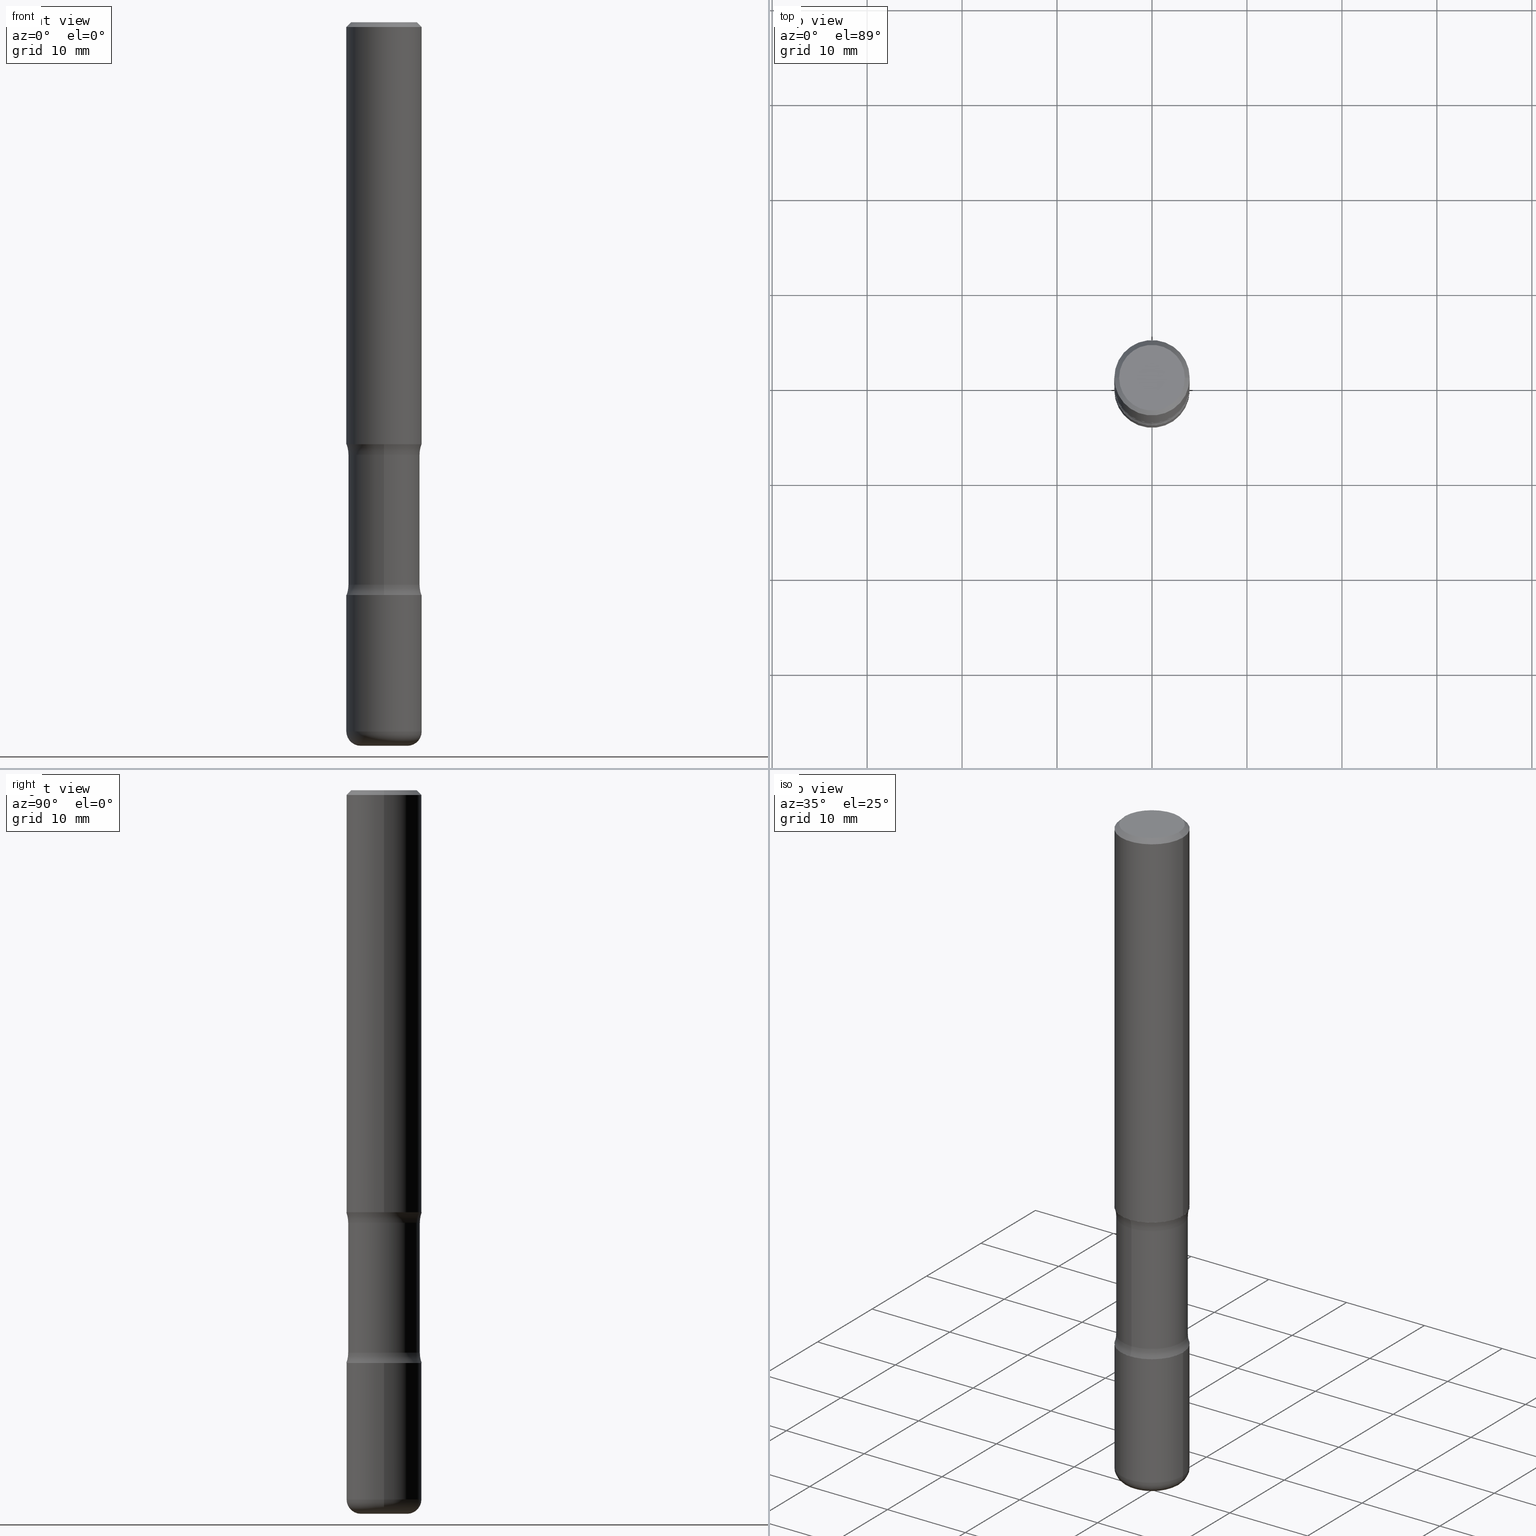
[diagram: canonical four-view strip — front | top / right | iso, engineering-drawing reading convention]
A machine part, canonical four-view strip (front | top / right | iso — engineering-drawing reading convention). The complete STEP part file that produces these views, byte-faithful:
ISO-10303-21;
HEADER;
FILE_DESCRIPTION (( 'STEP AP203' ),
    '1' );
FILE_NAME ('37824.STEP',
    '2024-03-02T00:34:00',
    ( '' ),
    ( '' ),
    'SwSTEP 2.0',
    'SolidWorks 2023',
    '' );
FILE_SCHEMA (( 'CONFIG_CONTROL_DESIGN' ));
ENDSEC;

DATA;
#1 = LINE ( 'NONE', #251, #518 ) ;
#2 = CC_DESIGN_SECURITY_CLASSIFICATION ( #524, ( #184 ) ) ;
#3 = ADVANCED_FACE ( 'NONE', ( #264 ), #409, .F. ) ;
#4 = FACE_OUTER_BOUND ( 'NONE', #418, .T. ) ;
#5 = ORIENTED_EDGE ( 'NONE', *, *, #94, .T. ) ;
#6 = ADVANCED_FACE ( 'NONE', ( #463 ), #260, .T. ) ;
#7 = ADVANCED_FACE ( 'NONE', ( #85 ), #369, .T. ) ;
#8 = DIRECTION ( 'NONE',  ( 1.000000000000000000, -6.982962677686268288E-15, 0.000000000000000000 ) ) ;
#9 = CARTESIAN_POINT ( 'NONE',  ( 7.189678290184302760E-29, -1.026495513619885119E-14, -2.940000000000000835 ) ) ;
#10 = ORIENTED_EDGE ( 'NONE', *, *, #90, .F. ) ;
#11 =( NAMED_UNIT ( * ) PLANE_ANGLE_UNIT ( ) SI_UNIT ( $, .RADIAN. ) );
#12 = CARTESIAN_POINT ( 'NONE',  ( 5.698202263795362163E-29, -8.145282435205020267E-15, -2.331501840915390478 ) ) ;
#13 = PRODUCT_DEFINITION_SHAPE ( 'NONE', 'NONE',  #43 ) ;
#14 = CLOSED_SHELL ( 'NONE', ( #293, #214, #436, #322, #376, #312, #228, #173 ) ) ;
#15 =( CONVERSION_BASED_UNIT ( 'INCH', #516 ) LENGTH_UNIT ( ) NAMED_UNIT ( #226 ) );
#16 = APPROVAL_PERSON_ORGANIZATION ( #277, #255, #118 ) ;
#17 = CARTESIAN_POINT ( 'NONE',  ( -1.071952812151744220E-15, -0.1562500000000084099, -2.375000000000000000 ) ) ;
#18 = AXIS2_PLACEMENT_3D ( 'NONE', #234, #329, #29 ) ;
#19 = CIRCLE ( 'NONE', #53, 0.05999999999999997696 ) ;
#20 = EDGE_LOOP ( 'NONE', ( #398, #196 ) ) ;
#21 = DIRECTION ( 'NONE',  ( 0.7071067811865473507, -7.319954787623256045E-15, -0.7071067811865476838 ) ) ;
#22 = CARTESIAN_POINT ( 'NONE',  ( 4.890937612370273159E-31, -6.982962677686291609E-17, -0.02000000000000000042 ) ) ;
#23 = VERTEX_POINT ( 'NONE', #258 ) ;
#24 = COORDINATED_UNIVERSAL_TIME_OFFSET ( 5, 0, .BEHIND. ) ;
#25 = CLOSED_SHELL ( 'NONE', ( #172, #406, #435, #534, #84, #78 ) ) ;
#26 = VERTEX_POINT ( 'NONE', #294 ) ;
#27 = EDGE_CURVE ( 'NONE', #372, #107, #115, .T. ) ;
#28 = PERSON_AND_ORGANIZATION_ROLE ( 'design_supplier' ) ;
#29 = DIRECTION ( 'NONE',  ( 6.982962677686266711E-15, 1.000000000000000000, -3.680805717779217644E-15 ) ) ;
#30 = VECTOR ( 'NONE', #549, 39.37007874015748143 ) ;
#31 = ORIENTED_EDGE ( 'NONE', *, *, #147, .F. ) ;
#32 = LINE ( 'NONE', #332, #479 ) ;
#33 = DIRECTION ( 'NONE',  ( 6.982962677686265922E-15, 1.000000000000000000, -3.496765431890254553E-15 ) ) ;
#34 = CALENDAR_DATE ( 2024, 1, 3 ) ;
#35 = CARTESIAN_POINT ( 'NONE',  ( -0.1562500000000000833, -1.979737960251025472E-15, -1.750000000000000444 ) ) ;
#36 = AXIS2_PLACEMENT_3D ( 'NONE', #46, #327, #501 ) ;
#37 = CC_DESIGN_APPROVAL ( #255, ( #524 ) ) ;
#38 = FACE_OUTER_BOUND ( 'NONE', #262, .T. ) ;
#39 = PERSON_AND_ORGANIZATION ( #256, #212 ) ;
#40 = CIRCLE ( 'NONE', #528, 0.1562500000000001110 ) ;
#41 = EDGE_CURVE ( 'NONE', #286, #401, #421, .T. ) ;
#42 = CARTESIAN_POINT ( 'NONE',  ( -1.045153991847964360E-15, -0.1484375000000063560, -1.793498159084609522 ) ) ;
#43 = PRODUCT_DEFINITION ( 'UNKNOWN', '', #184, #246 ) ;
#44 = ORIENTED_EDGE ( 'NONE', *, *, #128, .F. ) ;
#45 = CARTESIAN_POINT ( 'NONE',  ( -0.1562499999999998612, 1.021258291611615284E-15, -0.02000000000000000042 ) ) ;
#46 = CARTESIAN_POINT ( 'NONE',  ( 0.000000000000000000, 0.000000000000000000, 0.000000000000000000 ) ) ;
#47 = FACE_OUTER_BOUND ( 'NONE', #67, .T. ) ;
#48 = CARTESIAN_POINT ( 'NONE',  ( 4.279570410823989605E-29, -6.110092342975506249E-15, -1.750000000000000444 ) ) ;
#49 = LOCAL_TIME ( 19, 34, 0.000000000000000000, #109 ) ;
#50 = AXIS2_PLACEMENT_3D ( 'NONE', #9, #110, #180 ) ;
#51 = PLANE ( 'NONE',  #344 ) ;
#52 = CIRCLE ( 'NONE', #120, 0.05999999999999997696 ) ;
#53 = AXIS2_PLACEMENT_3D ( 'NONE', #54, #334, #80 ) ;
#54 = CARTESIAN_POINT ( 'NONE',  ( 0.09625000000000016875, -1.093706529392615610E-14, -2.940000000000000835 ) ) ;
#55 = ORIENTED_EDGE ( 'NONE', *, *, #108, .T. ) ;
#56 = DIRECTION ( 'NONE',  ( 2.523926373086038130E-29, -3.379125637513666367E-15, -1.000000000000000000 ) ) ;
#57 = EDGE_CURVE ( 'NONE', #107, #372, #183, .T. ) ;
#58 = AXIS2_PLACEMENT_3D ( 'NONE', #330, #482, #66 ) ;
#59 = LOCAL_TIME ( 19, 34, 0.000000000000000000, #245 ) ;
#60 = DIRECTION ( 'NONE',  ( 1.000000000000000000, -6.860497997771530774E-15, 4.842174840124134267E-29 ) ) ;
#61 = CARTESIAN_POINT ( 'NONE',  ( 7.189678290184302760E-29, -1.026495513619885119E-14, -2.940000000000000835 ) ) ;
#62 = ORIENTED_EDGE ( 'NONE', *, *, #57, .F. ) ;
#63 = DIRECTION ( 'NONE',  ( -2.445468806185136597E-29, 3.491481338843145583E-15, 1.000000000000000000 ) ) ;
#64 = AXIS2_PLACEMENT_3D ( 'NONE', #308, #181, #263 ) ;
#65 = ORIENTED_EDGE ( 'NONE', *, *, #278, .T. ) ;
#66 = DIRECTION ( 'NONE',  ( -6.982962677686265922E-15, -1.000000000000000000, 0.000000000000000000 ) ) ;
#67 = EDGE_LOOP ( 'NONE', ( #105, #133, #431, #505 ) ) ;
#68 = CARTESIAN_POINT ( 'NONE',  ( 5.701615023521807970E-29, -8.140395169034527718E-15, -2.331501840915390478 ) ) ;
#69 = ORIENTED_EDGE ( 'NONE', *, *, #502, .T. ) ;
#70 = SHAPE_DEFINITION_REPRESENTATION ( #13, #235 ) ;
#71 = CIRCLE ( 'NONE', #506, 0.1562499999999998612 ) ;
#72 = CARTESIAN_POINT ( 'NONE',  ( -1.045153991847949569E-15, -0.1484375000000081601, -2.331501840915390034 ) ) ;
#73 = EDGE_CURVE ( 'NONE', #529, #469, #97, .T. ) ;
#74 = DIRECTION ( 'NONE',  ( 6.982962677686265133E-15, 1.000000000000000000, -3.680805717779217644E-15 ) ) ;
#75 = ORIENTED_EDGE ( 'NONE', *, *, #206, .F. ) ;
#76 = EDGE_LOOP ( 'NONE', ( #348, #551, #532, #443 ) ) ;
#77 = PERSON_AND_ORGANIZATION ( #256, #212 ) ;
#78 = ADVANCED_FACE ( 'NONE', ( #38 ), #417, .F. ) ;
#79 = DIRECTION ( 'NONE',  ( 2.438088387897960049E-29, -3.491481338843145188E-15, -1.000000000000000000 ) ) ;
#80 = DIRECTION ( 'NONE',  ( 1.000000000000000000, -6.982962677686270655E-15, 0.000000000000000000 ) ) ;
#81 = ORIENTED_EDGE ( 'NONE', *, *, #383, .T. ) ;
#82 = ORIENTED_EDGE ( 'NONE', *, *, #457, .F. ) ;
#83 = CARTESIAN_POINT ( 'NONE',  ( -1.644714796798335280E-28, -4.453384757390203469E-14, -3.000000000000000444 ) ) ;
#84 = ADVANCED_FACE ( 'NONE', ( #249 ), #137, .T. ) ;
#85 = FACE_OUTER_BOUND ( 'NONE', #76, .T. ) ;
#86 = MANIFOLD_SOLID_BREP ( 'Body-Move/Copy2[2]', #522 ) ;
#87 = PLANE ( 'NONE',  #309 ) ;
#88 = AXIS2_PLACEMENT_3D ( 'NONE', #61, #428, #8 ) ;
#89 = CYLINDRICAL_SURFACE ( 'NONE', #461, 0.1562499999999999722 ) ;
#90 = EDGE_CURVE ( 'NONE', #301, #92, #218, .T. ) ;
#91 = DIRECTION ( 'NONE',  ( 2.523926373086038410E-29, -3.379125637513666367E-15, -1.000000000000000000 ) ) ;
#92 = VERTEX_POINT ( 'NONE', #42 ) ;
#93 = CARTESIAN_POINT ( 'NONE',  ( 7.336406418555412032E-29, -1.047444401652943951E-14, -3.000000000000000888 ) ) ;
#94 = EDGE_CURVE ( 'NONE', #244, #23, #408, .T. ) ;
#95 = CARTESIAN_POINT ( 'NONE',  ( 1.091087918388522561E-15, 0.1562499999999940048, -1.750000000000001110 ) ) ;
#96 = CC_DESIGN_PERSON_AND_ORGANIZATION_ASSIGNMENT ( #148, #28, ( #184 ) ) ;
#97 = CIRCLE ( 'NONE', #466, 0.1562500000000001110 ) ;
#98 = ORIENTED_EDGE ( 'NONE', *, *, #192, .T. ) ;
#99 = DIRECTION ( 'NONE',  ( -6.982962677686265922E-15, -1.000000000000000000, 0.000000000000000000 ) ) ;
#100 = CARTESIAN_POINT ( 'NONE',  ( 0.09625000000000016875, -1.114655417425674284E-14, -3.000000000000000888 ) ) ;
#101 = AXIS2_PLACEMENT_3D ( 'NONE', #182, #347, #478 ) ;
#102 = DIRECTION ( 'NONE',  ( 6.982962677686265922E-15, 1.000000000000000000, -3.379125637513666761E-15 ) ) ;
#103 = CARTESIAN_POINT ( 'NONE',  ( 1.091087918388537746E-15, 0.1562499999999918121, -2.375000000000000888 ) ) ;
#104 = DIRECTION ( 'NONE',  ( 1.000000000000000000, -6.982962677686266711E-15, 4.876176775795936353E-29 ) ) ;
#105 = ORIENTED_EDGE ( 'NONE', *, *, #367, .F. ) ;
#106 = CIRCLE ( 'NONE', #307, 0.09625000000000016875 ) ;
#107 = VERTEX_POINT ( 'NONE', #95 ) ;
#108 = EDGE_CURVE ( 'NONE', #529, #23, #380, .T. ) ;
#109 = COORDINATED_UNIVERSAL_TIME_OFFSET ( 5, 0, .BEHIND. ) ;
#110 = DIRECTION ( 'NONE',  ( -2.445468806185136597E-29, 3.491481338843145583E-15, 1.000000000000000000 ) ) ;
#111 = EDGE_CURVE ( 'NONE', #280, #199, #504, .T. ) ;
#112 = APPROVAL_DATE_TIME ( #492, #255 ) ;
#113 = ORIENTED_EDGE ( 'NONE', *, *, #444, .T. ) ;
#114 = CALENDAR_DATE ( 2024, 1, 3 ) ;
#115 = CIRCLE ( 'NONE', #439, 0.1562500000000001665 ) ;
#116 = TOROIDAL_SURFACE ( 'NONE', #429, 0.2734375000000000555, 0.1250000000000000000 ) ;
#117 = ORIENTED_EDGE ( 'NONE', *, *, #397, .F. ) ;
#118 = APPROVAL_ROLE ( '' ) ;
#119 = CARTESIAN_POINT ( 'NONE',  ( -0.1562499999999999722, 1.110223024625156343E-15, -7.685836078523288357E-30 ) ) ;
#120 = AXIS2_PLACEMENT_3D ( 'NONE', #412, #368, #248 ) ;
#121 = ORIENTED_EDGE ( 'NONE', *, *, #273, .F. ) ;
#122 = PERSON_AND_ORGANIZATION ( #256, #212 ) ;
#123 = CARTESIAN_POINT ( 'NONE',  ( 5.807988414689700538E-29, -8.292268179752471696E-15, -2.375000000000000444 ) ) ;
#124 = DIRECTION ( 'NONE',  ( -2.445468806185136597E-29, 3.491481338843145583E-15, 1.000000000000000000 ) ) ;
#125 = FACE_OUTER_BOUND ( 'NONE', #519, .T. ) ;
#126 = DIRECTION ( 'NONE',  ( -2.445468806185136597E-29, 3.491481338843145583E-15, 1.000000000000000000 ) ) ;
#127 = LINE ( 'NONE', #45, #168 ) ;
#128 = EDGE_CURVE ( 'NONE', #301, #23, #221, .T. ) ;
#129 = CARTESIAN_POINT ( 'NONE',  ( 4.279570410823989605E-29, -6.110092342975506249E-15, -1.750000000000000444 ) ) ;
#130 = ORIENTED_EDGE ( 'NONE', *, *, #447, .F. ) ;
#131 = DIRECTION ( 'NONE',  ( 6.982962677686265922E-15, 1.000000000000000000, -3.379125637513666761E-15 ) ) ;
#132 = AXIS2_PLACEMENT_3D ( 'NONE', #83, #257, #419 ) ;
#133 = ORIENTED_EDGE ( 'NONE', *, *, #447, .T. ) ;
#134 = DIRECTION ( 'NONE',  ( -2.445468806185136597E-29, 3.491481338843145583E-15, 1.000000000000000000 ) ) ;
#135 = AXIS2_PLACEMENT_3D ( 'NONE', #465, #91, #213 ) ;
#136 = DIRECTION ( 'NONE',  ( 2.445468806185136597E-29, -3.491481338843145583E-15, -1.000000000000000000 ) ) ;
#137 = CYLINDRICAL_SURFACE ( 'NONE', #300, 0.1562500000000001388 ) ;
#138 = AXIS2_PLACEMENT_3D ( 'NONE', #391, #60, #523 ) ;
#139 = FACE_OUTER_BOUND ( 'NONE', #193, .T. ) ;
#140 = ORIENTED_EDGE ( 'NONE', *, *, #157, .T. ) ;
#141 = AXIS2_PLACEMENT_3D ( 'NONE', #321, #407, #204 ) ;
#142 = EDGE_LOOP ( 'NONE', ( #275, #319, #81, #154 ) ) ;
#143 = CC_DESIGN_PERSON_AND_ORGANIZATION_ASSIGNMENT ( #39, #452, ( #184 ) ) ;
#144 = CARTESIAN_POINT ( 'NONE',  ( 1.909403857179882138E-15, 0.2734374999999937272, -1.793498159084611077 ) ) ;
#145 = EDGE_LOOP ( 'NONE', ( #117, #472 ) ) ;
#146 = AXIS2_PLACEMENT_3D ( 'NONE', #548, #161, #163 ) ;
#147 = EDGE_CURVE ( 'NONE', #26, #363, #485, .T. ) ;
#148 = PERSON_AND_ORGANIZATION ( #256, #212 ) ;
#149 = EDGE_LOOP ( 'NONE', ( #539, #98, #559, #167 ) ) ;
#150 = UNCERTAINTY_MEASURE_WITH_UNIT (LENGTH_MEASURE( 1.000000000000000082E-05 ), #15, 'distance_accuracy_value', 'NONE');
#151 = DIRECTION ( 'NONE',  ( 2.523926373086038410E-29, -3.379125637513666367E-15, -1.000000000000000000 ) ) ;
#152 = PRODUCT_RELATED_PRODUCT_CATEGORY ( 'detail', '', ( #521 ) ) ;
#153 = ORIENTED_EDGE ( 'NONE', *, *, #41, .T. ) ;
#154 = ORIENTED_EDGE ( 'NONE', *, *, #192, .F. ) ;
#155 = PERSON_AND_ORGANIZATION_ROLE ( 'classification_officer' ) ;
#156 = APPLICATION_CONTEXT ( 'configuration controlled 3d designs of mechanical parts and assemblies' ) ;
#157 = EDGE_CURVE ( 'NONE', #253, #232, #290, .T. ) ;
#158 = CARTESIAN_POINT ( 'NONE',  ( 4.230534431510926007E-29, -6.180314656306430561E-15, -1.750000000000000444 ) ) ;
#159 = CYLINDRICAL_SURFACE ( 'NONE', #18, 0.1484375000000000000 ) ;
#160 = CIRCLE ( 'NONE', #470, 0.1562500000000001110 ) ;
#161 = DIRECTION ( 'NONE',  ( 2.523926373086038410E-29, -3.379125637513666367E-15, -1.000000000000000000 ) ) ;
#162 = CARTESIAN_POINT ( 'NONE',  ( -0.1362499999999998712, 9.863434782231840290E-16, -6.775751096333132877E-30 ) ) ;
#163 = DIRECTION ( 'NONE',  ( 6.982962677686265133E-15, 1.000000000000000000, -3.680805717779217644E-15 ) ) ;
#164 = DIRECTION ( 'NONE',  ( -2.523926373086038130E-29, 3.379125637513666367E-15, 1.000000000000000000 ) ) ;
#165 = AXIS2_PLACEMENT_3D ( 'NONE', #490, #531, #267 ) ;
#166 = TOROIDAL_SURFACE ( 'NONE', #555, 0.09625000000000016875, 0.05999999999999995615 ) ;
#167 = ORIENTED_EDGE ( 'NONE', *, *, #416, .F. ) ;
#168 = VECTOR ( 'NONE', #207, 39.37007874015748143 ) ;
#169 = LINE ( 'NONE', #511, #176 ) ;
#170 = CARTESIAN_POINT ( 'NONE',  ( -1.071952812151760391E-15, -0.1562500000000063560, -1.750000000000000000 ) ) ;
#171 = AXIS2_PLACEMENT_3D ( 'NONE', #392, #318, #445 ) ;
#172 = ADVANCED_FACE ( 'NONE', ( #356 ), #430, .T. ) ;
#173 = ADVANCED_FACE ( 'NONE', ( #219 ), #353, .T. ) ;
#174 = DIRECTION ( 'NONE',  ( 1.000000000000000000, -6.982962677686270655E-15, 0.000000000000000000 ) ) ;
#175 = DIRECTION ( 'NONE',  ( -2.438088387897960049E-29, 3.491481338843145188E-15, 1.000000000000000000 ) ) ;
#176 = VECTOR ( 'NONE', #336, 39.37007874015748143 ) ;
#177 = ORIENTED_EDGE ( 'NONE', *, *, #227, .T. ) ;
#178 = DIRECTION ( 'NONE',  ( 1.000000000000000000, -6.982962677686269077E-15, 4.883557194083113462E-29 ) ) ;
#179 = TOROIDAL_SURFACE ( 'NONE', #254, 0.2734375000000000000, 0.1250000000000000000 ) ;
#180 = DIRECTION ( 'NONE',  ( 1.000000000000000000, -6.982962677686268288E-15, 0.000000000000000000 ) ) ;
#181 = DIRECTION ( 'NONE',  ( 1.000000000000000000, -6.860497997771530774E-15, 4.842174840124134267E-29 ) ) ;
#182 = CARTESIAN_POINT ( 'NONE',  ( 5.701615023521807970E-29, -8.140395169034527718E-15, -2.331501840915390478 ) ) ;
#183 = CIRCLE ( 'NONE', #339, 0.1562500000000001665 ) ;
#184 = PRODUCT_DEFINITION_FORMATION_WITH_SPECIFIED_SOURCE ( 'ANY', '', #521, .NOT_KNOWN. ) ;
#185 = DIRECTION ( 'NONE',  ( 1.000000000000000000, 0.000000000000000000, 0.000000000000000000 ) ) ;
#186 = CARTESIAN_POINT ( 'NONE',  ( 0.000000000000000000, 0.000000000000000000, 0.000000000000000000 ) ) ;
#187 = VERTEX_POINT ( 'NONE', #525 ) ;
#188 = DIRECTION ( 'NONE',  ( 2.523926373086038410E-29, -3.379125637513666367E-15, -1.000000000000000000 ) ) ;
#189 = DIRECTION ( 'NONE',  ( -2.445468806185136597E-29, 3.491481338843145583E-15, 1.000000000000000000 ) ) ;
#190 = ORIENTED_EDGE ( 'NONE', *, *, #480, .F. ) ;
#191 = CARTESIAN_POINT ( 'NONE',  ( 0.000000000000000000, 0.000000000000000000, 0.000000000000000000 ) ) ;
#192 = EDGE_CURVE ( 'NONE', #451, #187, #233, .T. ) ;
#193 = EDGE_LOOP ( 'NONE', ( #240, #121, #394, #354 ) ) ;
#194 = AXIS2_PLACEMENT_3D ( 'NONE', #432, #136, #530 ) ;
#195 = APPROVAL ( #533, 'UNSPECIFIED' ) ;
#196 = ORIENTED_EDGE ( 'NONE', *, *, #206, .T. ) ;
#197 = PERSON_AND_ORGANIZATION ( #256, #212 ) ;
#198 = CARTESIAN_POINT ( 'NONE',  ( 0.1562500000000001110, -9.383356098140953236E-15, -2.375000000000000444 ) ) ;
#199 = VERTEX_POINT ( 'NONE', #100 ) ;
#200 = CARTESIAN_POINT ( 'NONE',  ( 0.1362499999999998712, -1.038262645562517138E-15, 6.957025900226689470E-30 ) ) ;
#201 = DIRECTION ( 'NONE',  ( 1.000000000000000000, -6.982962677686265133E-15, 0.000000000000000000 ) ) ;
#202 = FACE_OUTER_BOUND ( 'NONE', #209, .T. ) ;
#203 = DIRECTION ( 'NONE',  ( -1.000000000000000000, 6.982962677686265922E-15, -4.876176775795935793E-29 ) ) ;
#204 = DIRECTION ( 'NONE',  ( 1.000000000000000000, -6.982962677686266711E-15, 4.876176775795936353E-29 ) ) ;
#205 = EDGE_LOOP ( 'NONE', ( #130, #10, #69, #379 ) ) ;
#206 = EDGE_CURVE ( 'NONE', #469, #529, #40, .T. ) ;
#207 = DIRECTION ( 'NONE',  ( -0.7071067811865473507, 2.468850131082255088E-15, -0.7071067811865476838 ) ) ;
#208 = CIRCLE ( 'NONE', #514, 0.1562500000000001110 ) ;
#209 = EDGE_LOOP ( 'NONE', ( #491, #323, #324, #44 ) ) ;
#210 = ORIENTED_EDGE ( 'NONE', *, *, #230, .F. ) ;
#211 = PLANE ( 'NONE',  #132 ) ;
#212 = ORGANIZATION ( 'UNSPECIFIED', 'UNSPECIFIED', '' ) ;
#213 = DIRECTION ( 'NONE',  ( 6.982962677686265133E-15, 1.000000000000000000, -3.680805717779216855E-15 ) ) ;
#214 = ADVANCED_FACE ( 'NONE', ( #433 ), #557, .F. ) ;
#215 = DIRECTION ( 'NONE',  ( -6.982962677686265922E-15, -1.000000000000000000, 3.379125637513666367E-15 ) ) ;
#216 = FACE_OUTER_BOUND ( 'NONE', #467, .T. ) ;
#217 = DIRECTION ( 'NONE',  ( 2.523926373086038410E-29, -3.379125637513666367E-15, -1.000000000000000000 ) ) ;
#218 = CIRCLE ( 'NONE', #495, 0.1484375000000000278 ) ;
#219 = FACE_OUTER_BOUND ( 'NONE', #284, .T. ) ;
#220 = DIRECTION ( 'NONE',  ( 1.000000000000000000, -6.982962677686266711E-15, 0.000000000000000000 ) ) ;
#221 = LINE ( 'NONE', #274, #474 ) ;
#222 = AXIS2_PLACEMENT_3D ( 'NONE', #364, #79, #203 ) ;
#223 = CARTESIAN_POINT ( 'NONE',  ( 7.189678290184302760E-29, -1.026495513619885119E-14, -2.940000000000000835 ) ) ;
#224 = AXIS2_PLACEMENT_3D ( 'NONE', #342, #381, #292 ) ;
#225 = AXIS2_PLACEMENT_3D ( 'NONE', #299, #560, #423 ) ;
#226 = DIMENSIONAL_EXPONENTS ( 1.000000000000000000, 0.000000000000000000, 0.000000000000000000, 0.000000000000000000, 0.000000000000000000, 0.000000000000000000, 0.000000000000000000 ) ;
#227 = EDGE_CURVE ( 'NONE', #23, #244, #517, .T. ) ;
#228 = ADVANCED_FACE ( 'NONE', ( #239 ), #179, .F. ) ;
#229 = ORIENTED_EDGE ( 'NONE', *, *, #157, .F. ) ;
#230 = EDGE_CURVE ( 'NONE', #92, #244, #403, .T. ) ;
#231 = CARTESIAN_POINT ( 'NONE',  ( -0.09625000000000016875, -9.472639372467018266E-15, -3.000000000000000888 ) ) ;
#232 = VERTEX_POINT ( 'NONE', #162 ) ;
#233 = CIRCLE ( 'NONE', #50, 0.1562500000000001665 ) ;
#234 = CARTESIAN_POINT ( 'NONE',  ( 7.385442397868472267E-29, -1.040422170319851125E-14, -2.999999999999999556 ) ) ;
#235 = ADVANCED_BREP_SHAPE_REPRESENTATION ( '37824', ( #282, #86, #279, #476 ), #315 ) ;
#236 = ORIENTED_EDGE ( 'NONE', *, *, #271, .F. ) ;
#237 = EDGE_CURVE ( 'NONE', #401, #363, #32, .T. ) ;
#238 = COORDINATED_UNIVERSAL_TIME_OFFSET ( 5, 0, .BEHIND. ) ;
#239 = FACE_OUTER_BOUND ( 'NONE', #404, .T. ) ;
#240 = ORIENTED_EDGE ( 'NONE', *, *, #488, .F. ) ;
#241 = APPROVAL_DATE_TIME ( #402, #243 ) ;
#242 = DIRECTION ( 'NONE',  ( 6.982962677686265922E-15, 1.000000000000000000, -3.379125637513666761E-15 ) ) ;
#243 = APPROVAL ( #546, 'UNSPECIFIED' ) ;
#244 = VERTEX_POINT ( 'NONE', #72 ) ;
#245 = COORDINATED_UNIVERSAL_TIME_OFFSET ( 5, 0, .BEHIND. ) ;
#246 = DESIGN_CONTEXT ( 'detailed design', #362, 'design' ) ;
#247 = LOCAL_TIME ( 19, 34, 0.000000000000000000, #24 ) ;
#248 = DIRECTION ( 'NONE',  ( -1.000000000000000000, 7.105427357600993970E-15, 0.000000000000000000 ) ) ;
#249 = FACE_OUTER_BOUND ( 'NONE', #149, .T. ) ;
#250 = ORIENTED_EDGE ( 'NONE', *, *, #303, .F. ) ;
#251 = CARTESIAN_POINT ( 'NONE',  ( -0.1562500000000001388, 1.110223024625157526E-15, -7.685836078523296765E-30 ) ) ;
#252 = CIRCLE ( 'NONE', #135, 0.1484375000000000278 ) ;
#253 = VERTEX_POINT ( 'NONE', #200 ) ;
#254 = AXIS2_PLACEMENT_3D ( 'NONE', #68, #288, #242 ) ;
#255 = APPROVAL ( #540, 'UNSPECIFIED' ) ;
#256 = PERSON ( 'UNSPECIFIED', 'UNSPECIFIED', 'UNSPECIFIED', ('UNSPECIFIED'), ('UNSPECIFIED'), ('UNSPECIFIED') ) ;
#257 = DIRECTION ( 'NONE',  ( 2.438088387897960049E-29, -3.491481338843145188E-15, -1.000000000000000000 ) ) ;
#258 = CARTESIAN_POINT ( 'NONE',  ( 1.036533522469112013E-15, 0.1484374999999918399, -2.331501840915391366 ) ) ;
#259 = CARTESIAN_POINT ( 'NONE',  ( 5.807988414689700538E-29, -8.292268179752471696E-15, -2.375000000000000444 ) ) ;
#260 = CONICAL_SURFACE ( 'NONE', #269, 0.1562499999999998612, 0.7853981633974480570 ) ;
#261 = DIRECTION ( 'NONE',  ( 6.982962677686265922E-15, 1.000000000000000000, -3.379125637513666367E-15 ) ) ;
#262 = EDGE_LOOP ( 'NONE', ( #351, #390 ) ) ;
#263 = DIRECTION ( 'NONE',  ( 6.860497997771530774E-15, 1.000000000000000000, 0.000000000000000000 ) ) ;
#264 = FACE_OUTER_BOUND ( 'NONE', #145, .T. ) ;
#265 = CC_DESIGN_APPROVAL ( #243, ( #43 ) ) ;
#266 = MECHANICAL_CONTEXT ( 'NONE', #156, 'mechanical' ) ;
#267 = DIRECTION ( 'NONE',  ( 6.982962677686266711E-15, 1.000000000000000000, -3.680805717779217644E-15 ) ) ;
#268 = DIRECTION ( 'NONE',  ( -2.445468806185136597E-29, 3.491481338843145583E-15, 1.000000000000000000 ) ) ;
#269 = AXIS2_PLACEMENT_3D ( 'NONE', #335, #289, #508 ) ;
#270 = LOCAL_TIME ( 19, 34, 0.000000000000000000, #317 ) ;
#271 = EDGE_CURVE ( 'NONE', #286, #26, #285, .T. ) ;
#272 = DIRECTION ( 'NONE',  ( -2.445468806185136597E-29, 3.491481338843145583E-15, 1.000000000000000000 ) ) ;
#273 = EDGE_CURVE ( 'NONE', #232, #253, #558, .T. ) ;
#274 = CARTESIAN_POINT ( 'NONE',  ( 1.036533522469128973E-15, 0.1484374999999896194, -3.000000000000000444 ) ) ;
#275 = ORIENTED_EDGE ( 'NONE', *, *, #278, .F. ) ;
#276 = ORIENTED_EDGE ( 'NONE', *, *, #400, .F. ) ;
#277 = PERSON_AND_ORGANIZATION ( #256, #212 ) ;
#278 = EDGE_CURVE ( 'NONE', #280, #451, #52, .T. ) ;
#279 = MANIFOLD_SOLID_BREP ( 'Body-Move/Copy2[4]', #14 ) ;
#280 = VERTEX_POINT ( 'NONE', #231 ) ;
#281 = AXIS2_PLACEMENT_3D ( 'NONE', #144, #481, #99 ) ;
#282 = MANIFOLD_SOLID_BREP ( 'Body-Move/Copy2[1]', #25 ) ;
#283 = CALENDAR_DATE ( 2024, 1, 3 ) ;
#284 = EDGE_LOOP ( 'NONE', ( #210, #542, #374, #446 ) ) ;
#285 = LINE ( 'NONE', #119, #30 ) ;
#286 = VERTEX_POINT ( 'NONE', #35 ) ;
#287 = APPROVAL_ROLE ( '' ) ;
#288 = DIRECTION ( 'NONE',  ( 2.523926373086038410E-29, -3.379125637513666367E-15, -1.000000000000000000 ) ) ;
#289 = DIRECTION ( 'NONE',  ( 2.445468806185136597E-29, -3.491481338843145583E-15, -1.000000000000000000 ) ) ;
#290 = CIRCLE ( 'NONE', #357, 0.1362499999999998712 ) ;
#291 = APPROVAL_PERSON_ORGANIZATION ( #77, #195, #287 ) ;
#292 = DIRECTION ( 'NONE',  ( 1.000000000000000000, -6.982962677686269077E-15, 4.883557194083113462E-29 ) ) ;
#293 = ADVANCED_FACE ( 'NONE', ( #202 ), #159, .T. ) ;
#294 = CARTESIAN_POINT ( 'NONE',  ( -0.1562499999999998612, 1.021258291611615284E-15, -0.02000000000000000042 ) ) ;
#295 = EDGE_LOOP ( 'NONE', ( #483, #512, #250, #358 ) ) ;
#296 = CARTESIAN_POINT ( 'NONE',  ( 5.807988414689700538E-29, -8.292268179752471696E-15, -2.375000000000000444 ) ) ;
#297 = VERTEX_POINT ( 'NONE', #198 ) ;
#298 = DIRECTION ( 'NONE',  ( -2.445468806185136597E-29, 3.491481338843145583E-15, 1.000000000000000000 ) ) ;
#299 = CARTESIAN_POINT ( 'NONE',  ( 9.514286648347529716E-16, 0.1362499999999998712, -4.757143324173781621E-16 ) ) ;
#300 = AXIS2_PLACEMENT_3D ( 'NONE', #413, #126, #498 ) ;
#301 = VERTEX_POINT ( 'NONE', #500 ) ;
#302 = DIRECTION ( 'NONE',  ( 1.000000000000000000, -6.982962677686265133E-15, 0.000000000000000000 ) ) ;
#303 = EDGE_CURVE ( 'NONE', #297, #388, #160, .T. ) ;
#304 = ADVANCED_FACE ( 'NONE', ( #4 ), #468, .F. ) ;
#305 = DIRECTION ( 'NONE',  ( 1.000000000000000000, -6.982962677686267499E-15, 0.000000000000000000 ) ) ;
#306 = DIRECTION ( 'NONE',  ( -2.445468806185136597E-29, 3.491481338843145583E-15, 1.000000000000000000 ) ) ;
#307 = AXIS2_PLACEMENT_3D ( 'NONE', #93, #63, #305 ) ;
#308 = CARTESIAN_POINT ( 'NONE',  ( -1.875917421265609774E-15, -0.2734375000000063838, -1.793498159084609522 ) ) ;
#309 = AXIS2_PLACEMENT_3D ( 'NONE', #507, #56, #261 ) ;
#310 = CARTESIAN_POINT ( 'NONE',  ( 0.1562499999999998612, -1.141782438928663922E-15, -0.02000000000000000042 ) ) ;
#311 = DIRECTION ( 'NONE',  ( 2.523926373086038410E-29, -3.379125637513666367E-15, -1.000000000000000000 ) ) ;
#312 = ADVANCED_FACE ( 'NONE', ( #426 ), #51, .F. ) ;
#313 = ORIENTED_EDGE ( 'NONE', *, *, #457, .T. ) ;
#314 = FACE_OUTER_BOUND ( 'NONE', #142, .T. ) ;
#315 =( GEOMETRIC_REPRESENTATION_CONTEXT ( 3 ) GLOBAL_UNCERTAINTY_ASSIGNED_CONTEXT ( ( #150 ) ) GLOBAL_UNIT_ASSIGNED_CONTEXT ( ( #15, #11, #384 ) ) REPRESENTATION_CONTEXT ( 'NONE', 'WORKASPACE' ) );
#316 = EDGE_LOOP ( 'NONE', ( #229, #497, #473, #276 ) ) ;
#317 = COORDINATED_UNIVERSAL_TIME_OFFSET ( 5, 0, .BEHIND. ) ;
#318 = DIRECTION ( 'NONE',  ( -2.445468806185136597E-29, 3.491481338843145583E-15, 1.000000000000000000 ) ) ;
#319 = ORIENTED_EDGE ( 'NONE', *, *, #111, .T. ) ;
#320 = CALENDAR_DATE ( 2024, 1, 3 ) ;
#321 = CARTESIAN_POINT ( 'NONE',  ( 0.000000000000000000, 0.000000000000000000, 0.000000000000000000 ) ) ;
#322 = ADVANCED_FACE ( 'NONE', ( #337 ), #414, .F. ) ;
#323 = ORIENTED_EDGE ( 'NONE', *, *, #230, .T. ) ;
#324 = ORIENTED_EDGE ( 'NONE', *, *, #227, .F. ) ;
#325 = AXIS2_PLACEMENT_3D ( 'NONE', #48, #124, #201 ) ;
#326 = CIRCLE ( 'NONE', #64, 0.1250000000000000000 ) ;
#327 = DIRECTION ( 'NONE',  ( -2.445468806185136597E-29, 3.491481338843145583E-15, 1.000000000000000000 ) ) ;
#328 = PERSON_AND_ORGANIZATION_ROLE ( 'creator' ) ;
#329 = DIRECTION ( 'NONE',  ( 2.523926373086038410E-29, -3.379125637513666367E-15, -1.000000000000000000 ) ) ;
#330 = CARTESIAN_POINT ( 'NONE',  ( 1.909403857179895154E-15, 0.2734374999999918399, -2.331501840915391366 ) ) ;
#331 = EDGE_CURVE ( 'NONE', #187, #297, #169, .T. ) ;
#332 = CARTESIAN_POINT ( 'NONE',  ( 0.1562499999999999722, -1.091087918388478976E-15, 7.619026212181148976E-30 ) ) ;
#333 = DIRECTION ( 'NONE',  ( 2.523926373086038410E-29, -3.379125637513666367E-15, -1.000000000000000000 ) ) ;
#334 = DIRECTION ( 'NONE',  ( -6.982962677686266711E-15, -1.000000000000000000, 3.491481338843145583E-15 ) ) ;
#335 = CARTESIAN_POINT ( 'NONE',  ( 4.890937612370273159E-31, -6.982962677686291609E-17, -0.02000000000000000042 ) ) ;
#336 = DIRECTION ( 'NONE',  ( -2.445468806185136877E-29, 3.491481338843145188E-15, 1.000000000000000000 ) ) ;
#337 = FACE_OUTER_BOUND ( 'NONE', #205, .T. ) ;
#338 = ORIENTED_EDGE ( 'NONE', *, *, #237, .T. ) ;
#339 = AXIS2_PLACEMENT_3D ( 'NONE', #158, #454, #371 ) ;
#340 = DIRECTION ( 'NONE',  ( -2.445468806185136877E-29, 3.491481338843145188E-15, 1.000000000000000000 ) ) ;
#341 = LOCAL_TIME ( 19, 34, 0.000000000000000000, #238 ) ;
#342 = CARTESIAN_POINT ( 'NONE',  ( 7.189678290184302760E-29, -1.026495513619885119E-14, -2.940000000000000835 ) ) ;
#343 = DIRECTION ( 'NONE',  ( 1.000000000000000000, -6.982962677686265922E-15, 4.876176775795935793E-29 ) ) ;
#344 = AXIS2_PLACEMENT_3D ( 'NONE', #259, #164, #215 ) ;
#345 = EDGE_LOOP ( 'NONE', ( #62, #493 ) ) ;
#346 = DIRECTION ( 'NONE',  ( 2.523926373086038410E-29, -3.379125637513666367E-15, -1.000000000000000000 ) ) ;
#347 = DIRECTION ( 'NONE',  ( 2.523926373086038410E-29, -3.379125637513666367E-15, -1.000000000000000000 ) ) ;
#348 = ORIENTED_EDGE ( 'NONE', *, *, #397, .T. ) ;
#349 = CARTESIAN_POINT ( 'NONE',  ( -0.1562500000000001388, -9.154732111573694652E-15, -2.940000000000000835 ) ) ;
#350 = TOROIDAL_SURFACE ( 'NONE', #224, 0.09625000000000016875, 0.05999999999999995615 ) ;
#351 = ORIENTED_EDGE ( 'NONE', *, *, #303, .T. ) ;
#352 = CARTESIAN_POINT ( 'NONE',  ( 4.890937612370273159E-31, -6.982962677686291609E-17, -0.02000000000000000042 ) ) ;
#353 = CYLINDRICAL_SURFACE ( 'NONE', #165, 0.1484375000000000000 ) ;
#354 = ORIENTED_EDGE ( 'NONE', *, *, #147, .T. ) ;
#355 = DATE_AND_TIME ( #411, #59 ) ;
#356 = FACE_OUTER_BOUND ( 'NONE', #295, .T. ) ;
#357 = AXIS2_PLACEMENT_3D ( 'NONE', #191, #387, #389 ) ;
#358 = ORIENTED_EDGE ( 'NONE', *, *, #331, .F. ) ;
#359 = ORIENTED_EDGE ( 'NONE', *, *, #111, .F. ) ;
#360 = ADVANCED_FACE ( 'NONE', ( #513 ), #89, .T. ) ;
#361 = DATE_AND_TIME ( #114, #341 ) ;
#362 = APPLICATION_CONTEXT ( 'configuration controlled 3d designs of mechanical parts and assemblies' ) ;
#363 = VERTEX_POINT ( 'NONE', #415 ) ;
#364 = CARTESIAN_POINT ( 'NONE',  ( 5.807988414689700538E-29, -8.292268179752471696E-15, -2.375000000000000444 ) ) ;
#365 = PERSON_AND_ORGANIZATION_ROLE ( 'design_owner' ) ;
#366 = ORIENTED_EDGE ( 'NONE', *, *, #273, .T. ) ;
#367 = EDGE_CURVE ( 'NONE', #92, #301, #252, .T. ) ;
#368 = DIRECTION ( 'NONE',  ( 7.105427357601001859E-15, 1.000000000000000000, -3.491481338843145583E-15 ) ) ;
#369 = CYLINDRICAL_SURFACE ( 'NONE', #36, 0.1562499999999999722 ) ;
#370 = DIRECTION ( 'NONE',  ( 1.000000000000000000, -6.982962677686270655E-15, 0.000000000000000000 ) ) ;
#371 = DIRECTION ( 'NONE',  ( 6.982962677686266711E-15, 1.000000000000000000, -3.496765431890253370E-15 ) ) ;
#372 = VERTEX_POINT ( 'NONE', #170 ) ;
#373 = CARTESIAN_POINT ( 'NONE',  ( 0.1562500000000000833, -7.201180261363985422E-15, -1.750000000000000444 ) ) ;
#374 = ORIENTED_EDGE ( 'NONE', *, *, #128, .T. ) ;
#375 = DIRECTION ( 'NONE',  ( 2.523926373086038410E-29, -3.379125637513666367E-15, -1.000000000000000000 ) ) ;
#376 = ADVANCED_FACE ( 'NONE', ( #556 ), #87, .F. ) ;
#377 = VECTOR ( 'NONE', #547, 39.37007874015748143 ) ;
#378 = CARTESIAN_POINT ( 'NONE',  ( -0.1562500000000001110, -8.168388633350503326E-15, -2.375000000000000444 ) ) ;
#379 = ORIENTED_EDGE ( 'NONE', *, *, #57, .T. ) ;
#380 = CIRCLE ( 'NONE', #58, 0.1250000000000000000 ) ;
#381 = DIRECTION ( 'NONE',  ( -2.445468806185136597E-29, 3.491481338843145583E-15, 1.000000000000000000 ) ) ;
#382 = DIRECTION ( 'NONE',  ( 6.982962677686265133E-15, 1.000000000000000000, -3.680805717779216855E-15 ) ) ;
#383 = EDGE_CURVE ( 'NONE', #199, #187, #19, .T. ) ;
#384 =( NAMED_UNIT ( * ) SI_UNIT ( $, .STERADIAN. ) SOLID_ANGLE_UNIT ( ) );
#385 = AXIS2_PLACEMENT_3D ( 'NONE', #552, #375, #131 ) ;
#386 = DIRECTION ( 'NONE',  ( 0.000000000000000000, 0.000000000000000000, 1.000000000000000000 ) ) ;
#387 = DIRECTION ( 'NONE',  ( -2.445468806185136597E-29, 3.491481338843145583E-15, 1.000000000000000000 ) ) ;
#388 = VERTEX_POINT ( 'NONE', #378 ) ;
#389 = DIRECTION ( 'NONE',  ( 1.000000000000000000, -6.982962677686266711E-15, 4.876176775795936353E-29 ) ) ;
#390 = ORIENTED_EDGE ( 'NONE', *, *, #416, .T. ) ;
#391 = CARTESIAN_POINT ( 'NONE',  ( -1.875917421265595575E-15, -0.2734375000000081046, -2.331501840915390034 ) ) ;
#392 = CARTESIAN_POINT ( 'NONE',  ( 7.336406418555412032E-29, -1.047444401652943951E-14, -3.000000000000000888 ) ) ;
#393 = EDGE_CURVE ( 'NONE', #451, #388, #1, .T. ) ;
#394 = ORIENTED_EDGE ( 'NONE', *, *, #400, .T. ) ;
#395 = PERSON_AND_ORGANIZATION ( #256, #212 ) ;
#396 = AXIS2_PLACEMENT_3D ( 'NONE', #186, #306, #104 ) ;
#397 = EDGE_CURVE ( 'NONE', #401, #286, #434, .T. ) ;
#398 = ORIENTED_EDGE ( 'NONE', *, *, #73, .T. ) ;
#399 = DATE_AND_TIME ( #320, #270 ) ;
#400 = EDGE_CURVE ( 'NONE', #232, #26, #127, .T. ) ;
#401 = VERTEX_POINT ( 'NONE', #373 ) ;
#402 = DATE_AND_TIME ( #283, #247 ) ;
#403 = LINE ( 'NONE', #456, #377 ) ;
#404 = EDGE_LOOP ( 'NONE', ( #82, #453, #55, #177 ) ) ;
#405 = DATE_TIME_ROLE ( 'creation_date' ) ;
#406 = ADVANCED_FACE ( 'NONE', ( #216 ), #350, .T. ) ;
#407 = DIRECTION ( 'NONE',  ( -2.445468806185136597E-29, 3.491481338843145583E-15, 1.000000000000000000 ) ) ;
#408 = CIRCLE ( 'NONE', #146, 0.1484375000000000000 ) ;
#409 = PLANE ( 'NONE',  #543 ) ;
#410 = CIRCLE ( 'NONE', #138, 0.1250000000000000000 ) ;
#411 = CALENDAR_DATE ( 2024, 1, 3 ) ;
#412 = CARTESIAN_POINT ( 'NONE',  ( -0.09625000000000016875, -9.581057753029753564E-15, -2.940000000000000835 ) ) ;
#413 = CARTESIAN_POINT ( 'NONE',  ( 0.000000000000000000, 0.000000000000000000, 0.000000000000000000 ) ) ;
#414 = TOROIDAL_SURFACE ( 'NONE', #385, 0.2734375000000000555, 0.1250000000000000000 ) ;
#415 = CARTESIAN_POINT ( 'NONE',  ( 0.1562499999999998612, -1.141782438928663922E-15, -0.02000000000000000042 ) ) ;
#416 = EDGE_CURVE ( 'NONE', #388, #297, #208, .T. ) ;
#417 = PLANE ( 'NONE',  #222 ) ;
#418 = EDGE_LOOP ( 'NONE', ( #366, #140 ) ) ;
#419 = DIRECTION ( 'NONE',  ( -1.000000000000000000, 6.982962677686265922E-15, -4.876176775795935793E-29 ) ) ;
#420 = DIRECTION ( 'NONE',  ( 6.982962677686266711E-15, 1.000000000000000000, -3.496765431890253370E-15 ) ) ;
#421 = CIRCLE ( 'NONE', #325, 0.1562500000000000833 ) ;
#422 = CONICAL_SURFACE ( 'NONE', #194, 0.1562499999999998612, 0.7853981633974480570 ) ;
#423 = DIRECTION ( 'NONE',  ( -1.000000000000000000, 6.982962677686265922E-15, -4.876176775795935793E-29 ) ) ;
#424 = CARTESIAN_POINT ( 'NONE',  ( 0.000000000000000000, 0.000000000000000000, 0.000000000000000000 ) ) ;
#425 = ORIENTED_EDGE ( 'NONE', *, *, #444, .F. ) ;
#426 = FACE_OUTER_BOUND ( 'NONE', #20, .T. ) ;
#427 = CC_DESIGN_PERSON_AND_ORGANIZATION_ASSIGNMENT ( #197, #365, ( #521 ) ) ;
#428 = DIRECTION ( 'NONE',  ( -2.445468806185136597E-29, 3.491481338843145583E-15, 1.000000000000000000 ) ) ;
#429 = AXIS2_PLACEMENT_3D ( 'NONE', #471, #188, #102 ) ;
#430 = CYLINDRICAL_SURFACE ( 'NONE', #396, 0.1562500000000001388 ) ;
#431 = ORIENTED_EDGE ( 'NONE', *, *, #27, .T. ) ;
#432 = CARTESIAN_POINT ( 'NONE',  ( 4.890937612370273159E-31, -6.982962677686291609E-17, -0.02000000000000000042 ) ) ;
#433 = FACE_OUTER_BOUND ( 'NONE', #448, .T. ) ;
#434 = CIRCLE ( 'NONE', #509, 0.1562500000000000833 ) ;
#435 = ADVANCED_FACE ( 'NONE', ( #125 ), #211, .T. ) ;
#436 = ADVANCED_FACE ( 'NONE', ( #47 ), #116, .F. ) ;
#437 = CARTESIAN_POINT ( 'NONE',  ( 0.000000000000000000, 0.000000000000000000, 0.000000000000000000 ) ) ;
#438 =( LENGTH_UNIT ( ) NAMED_UNIT ( * ) SI_UNIT ( $, .METRE. ) );
#439 = AXIS2_PLACEMENT_3D ( 'NONE', #460, #333, #420 ) ;
#440 = CIRCLE ( 'NONE', #281, 0.1250000000000000000 ) ;
#441 = ADVANCED_FACE ( 'NONE', ( #139 ), #422, .T. ) ;
#442 = DIRECTION ( 'NONE',  ( 1.000000000000000000, -6.982962677686266711E-15, 0.000000000000000000 ) ) ;
#443 = ORIENTED_EDGE ( 'NONE', *, *, #237, .F. ) ;
#444 = EDGE_CURVE ( 'NONE', #199, #280, #106, .T. ) ;
#445 = DIRECTION ( 'NONE',  ( 1.000000000000000000, -6.982962677686267499E-15, 0.000000000000000000 ) ) ;
#446 = ORIENTED_EDGE ( 'NONE', *, *, #94, .F. ) ;
#447 = EDGE_CURVE ( 'NONE', #92, #372, #326, .T. ) ;
#448 = EDGE_LOOP ( 'NONE', ( #75, #313, #5, #537 ) ) ;
#449 = APPROVAL_DATE_TIME ( #355, #195 ) ;
#450 = VECTOR ( 'NONE', #21, 39.37007874015748143 ) ;
#451 = VERTEX_POINT ( 'NONE', #349 ) ;
#452 = PERSON_AND_ORGANIZATION_ROLE ( 'creator' ) ;
#453 = ORIENTED_EDGE ( 'NONE', *, *, #73, .F. ) ;
#454 = DIRECTION ( 'NONE',  ( 2.523926373086038410E-29, -3.379125637513666367E-15, -1.000000000000000000 ) ) ;
#455 = APPLICATION_PROTOCOL_DEFINITION ( 'international standard', 'config_control_design', 1994, #362 ) ;
#456 = CARTESIAN_POINT ( 'NONE',  ( -1.018355171544137761E-15, -0.1484375000000104083, -2.999999999999999112 ) ) ;
#457 = EDGE_CURVE ( 'NONE', #469, #244, #410, .T. ) ;
#458 = DIRECTION ( 'NONE',  ( 2.523926373086038410E-29, -3.379125637513666367E-15, -1.000000000000000000 ) ) ;
#459 = DIRECTION ( 'NONE',  ( 1.000000000000000000, -6.982962677686266711E-15, 4.876176775795936353E-29 ) ) ;
#460 = CARTESIAN_POINT ( 'NONE',  ( 4.230534431510926007E-29, -6.180314656306430561E-15, -1.750000000000000444 ) ) ;
#461 = AXIS2_PLACEMENT_3D ( 'NONE', #424, #298, #459 ) ;
#462 = DIRECTION ( 'NONE',  ( -2.445468806185136597E-29, 3.491481338843145583E-15, 1.000000000000000000 ) ) ;
#463 = FACE_OUTER_BOUND ( 'NONE', #316, .T. ) ;
#464 = CC_DESIGN_DATE_AND_TIME_ASSIGNMENT ( #361, #405, ( #43 ) ) ;
#465 = CARTESIAN_POINT ( 'NONE',  ( 4.340320582405264943E-29, -6.327300400853882778E-15, -1.793498159084609966 ) ) ;
#466 = AXIS2_PLACEMENT_3D ( 'NONE', #544, #458, #33 ) ;
#467 = EDGE_LOOP ( 'NONE', ( #113, #65, #190, #527 ) ) ;
#468 = PLANE ( 'NONE',  #225 ) ;
#469 = VERTEX_POINT ( 'NONE', #17 ) ;
#470 = AXIS2_PLACEMENT_3D ( 'NONE', #123, #541, #370 ) ;
#471 = CARTESIAN_POINT ( 'NONE',  ( 4.338252820539708503E-29, -6.330261553535058631E-15, -1.793498159084610410 ) ) ;
#472 = ORIENTED_EDGE ( 'NONE', *, *, #41, .F. ) ;
#473 = ORIENTED_EDGE ( 'NONE', *, *, #550, .T. ) ;
#474 = VECTOR ( 'NONE', #311, 39.37007874015748143 ) ;
#475 = APPLICATION_PROTOCOL_DEFINITION ( 'international standard', 'config_control_design', 1994, #156 ) ;
#476 = AXIS2_PLACEMENT_3D ( 'NONE', #437, #386, #185 ) ;
#477 = CARTESIAN_POINT ( 'NONE',  ( 5.807988414689700538E-29, -8.292268179752471696E-15, -2.375000000000000444 ) ) ;
#478 = DIRECTION ( 'NONE',  ( 6.982962677686265922E-15, 1.000000000000000000, -3.379125637513666761E-15 ) ) ;
#479 = VECTOR ( 'NONE', #503, 39.37007874015748143 ) ;
#480 = EDGE_CURVE ( 'NONE', #187, #451, #536, .T. ) ;
#481 = DIRECTION ( 'NONE',  ( -1.000000000000000000, 6.982962677686265922E-15, -4.883557194083112340E-29 ) ) ;
#482 = DIRECTION ( 'NONE',  ( -1.000000000000000000, 6.982962677686265922E-15, -4.883557194083112340E-29 ) ) ;
#483 = ORIENTED_EDGE ( 'NONE', *, *, #480, .T. ) ;
#484 = LINE ( 'NONE', #310, #450 ) ;
#485 = CIRCLE ( 'NONE', #535, 0.1562499999999998612 ) ;
#486 = APPROVAL_PERSON_ORGANIZATION ( #499, #243, #489 ) ;
#487 = EDGE_LOOP ( 'NONE', ( #236, #153, #338, #31 ) ) ;
#488 = EDGE_CURVE ( 'NONE', #253, #363, #484, .T. ) ;
#489 = APPROVAL_ROLE ( '' ) ;
#490 = CARTESIAN_POINT ( 'NONE',  ( 7.385442397868472267E-29, -1.040422170319851125E-14, -2.999999999999999556 ) ) ;
#491 = ORIENTED_EDGE ( 'NONE', *, *, #90, .T. ) ;
#492 = DATE_AND_TIME ( #34, #49 ) ;
#493 = ORIENTED_EDGE ( 'NONE', *, *, #27, .F. ) ;
#494 = SECURITY_CLASSIFICATION_LEVEL ( 'unclassified' ) ;
#495 = AXIS2_PLACEMENT_3D ( 'NONE', #554, #217, #382 ) ;
#496 = CC_DESIGN_APPROVAL ( #195, ( #184 ) ) ;
#497 = ORIENTED_EDGE ( 'NONE', *, *, #488, .T. ) ;
#498 = DIRECTION ( 'NONE',  ( 1.000000000000000000, -6.982962677686266711E-15, 4.876176775795936353E-29 ) ) ;
#499 = PERSON_AND_ORGANIZATION ( #256, #212 ) ;
#500 = CARTESIAN_POINT ( 'NONE',  ( 1.036533522469098602E-15, 0.1484374999999936995, -1.793498159084610633 ) ) ;
#501 = DIRECTION ( 'NONE',  ( 1.000000000000000000, -6.982962677686266711E-15, 4.876176775795936353E-29 ) ) ;
#502 = EDGE_CURVE ( 'NONE', #301, #107, #440, .T. ) ;
#503 = DIRECTION ( 'NONE',  ( -2.445468806185136877E-29, 3.491481338843145188E-15, 1.000000000000000000 ) ) ;
#504 = CIRCLE ( 'NONE', #171, 0.09625000000000016875 ) ;
#505 = ORIENTED_EDGE ( 'NONE', *, *, #502, .F. ) ;
#506 = AXIS2_PLACEMENT_3D ( 'NONE', #352, #268, #220 ) ;
#507 = CARTESIAN_POINT ( 'NONE',  ( 4.279570410823989605E-29, -6.110092342975506249E-15, -1.750000000000000444 ) ) ;
#508 = DIRECTION ( 'NONE',  ( -1.000000000000000000, 6.982962677686266711E-15, 0.000000000000000000 ) ) ;
#509 = AXIS2_PLACEMENT_3D ( 'NONE', #515, #134, #302 ) ;
#510 = AXIS2_PLACEMENT_3D ( 'NONE', #12, #151, #74 ) ;
#511 = CARTESIAN_POINT ( 'NONE',  ( 0.1562500000000001388, -1.091087918388480160E-15, 7.619026212181157383E-30 ) ) ;
#512 = ORIENTED_EDGE ( 'NONE', *, *, #393, .T. ) ;
#513 = FACE_OUTER_BOUND ( 'NONE', #487, .T. ) ;
#514 = AXIS2_PLACEMENT_3D ( 'NONE', #296, #462, #174 ) ;
#515 = CARTESIAN_POINT ( 'NONE',  ( 4.279570410823989605E-29, -6.110092342975506249E-15, -1.750000000000000444 ) ) ;
#516 = LENGTH_MEASURE_WITH_UNIT ( LENGTH_MEASURE( 0.02539999999999999897 ), #438 );
#517 = CIRCLE ( 'NONE', #510, 0.1484375000000000000 ) ;
#518 = VECTOR ( 'NONE', #340, 39.37007874015748143 ) ;
#519 = EDGE_LOOP ( 'NONE', ( #425, #359 ) ) ;
#520 = DIRECTION ( 'NONE',  ( 6.982962677686265922E-15, 1.000000000000000000, -3.496765431890254553E-15 ) ) ;
#521 = PRODUCT ( '37824', '37824', '', ( #266 ) ) ;
#522 = CLOSED_SHELL ( 'NONE', ( #7, #6, #441, #304, #3, #360 ) ) ;
#523 = DIRECTION ( 'NONE',  ( 6.860497997771530774E-15, 1.000000000000000000, 0.000000000000000000 ) ) ;
#524 = SECURITY_CLASSIFICATION ( '', '', #494 ) ;
#525 = CARTESIAN_POINT ( 'NONE',  ( 0.1562500000000001388, -1.135604305458733115E-14, -2.940000000000000835 ) ) ;
#526 = CC_DESIGN_DATE_AND_TIME_ASSIGNMENT ( #399, #538, ( #524 ) ) ;
#527 = ORIENTED_EDGE ( 'NONE', *, *, #383, .F. ) ;
#528 = AXIS2_PLACEMENT_3D ( 'NONE', #477, #346, #520 ) ;
#529 = VERTEX_POINT ( 'NONE', #103 ) ;
#530 = DIRECTION ( 'NONE',  ( -1.000000000000000000, 6.982962677686266711E-15, 0.000000000000000000 ) ) ;
#531 = DIRECTION ( 'NONE',  ( 2.523926373086038410E-29, -3.379125637513666367E-15, -1.000000000000000000 ) ) ;
#532 = ORIENTED_EDGE ( 'NONE', *, *, #550, .F. ) ;
#533 = APPROVAL_STATUS ( 'not_yet_approved' ) ;
#534 = ADVANCED_FACE ( 'NONE', ( #314 ), #166, .T. ) ;
#535 = AXIS2_PLACEMENT_3D ( 'NONE', #22, #189, #442 ) ;
#536 = CIRCLE ( 'NONE', #88, 0.1562500000000001665 ) ;
#537 = ORIENTED_EDGE ( 'NONE', *, *, #108, .F. ) ;
#538 = DATE_TIME_ROLE ( 'classification_date' ) ;
#539 = ORIENTED_EDGE ( 'NONE', *, *, #393, .F. ) ;
#540 = APPROVAL_STATUS ( 'not_yet_approved' ) ;
#541 = DIRECTION ( 'NONE',  ( -2.445468806185136597E-29, 3.491481338843145583E-15, 1.000000000000000000 ) ) ;
#542 = ORIENTED_EDGE ( 'NONE', *, *, #367, .T. ) ;
#543 = AXIS2_PLACEMENT_3D ( 'NONE', #129, #175, #343 ) ;
#544 = CARTESIAN_POINT ( 'NONE',  ( 5.807988414689700538E-29, -8.292268179752471696E-15, -2.375000000000000444 ) ) ;
#545 = CC_DESIGN_PERSON_AND_ORGANIZATION_ASSIGNMENT ( #122, #328, ( #43 ) ) ;
#546 = APPROVAL_STATUS ( 'not_yet_approved' ) ;
#547 = DIRECTION ( 'NONE',  ( 2.523926373086038410E-29, -3.379125637513666367E-15, -1.000000000000000000 ) ) ;
#548 = CARTESIAN_POINT ( 'NONE',  ( 5.698202263795362163E-29, -8.145282435205020267E-15, -2.331501840915390478 ) ) ;
#549 = DIRECTION ( 'NONE',  ( -2.445468806185136877E-29, 3.491481338843145188E-15, 1.000000000000000000 ) ) ;
#550 = EDGE_CURVE ( 'NONE', #363, #26, #71, .T. ) ;
#551 = ORIENTED_EDGE ( 'NONE', *, *, #271, .T. ) ;
#552 = CARTESIAN_POINT ( 'NONE',  ( 4.338252820539708503E-29, -6.330261553535058631E-15, -1.793498159084610410 ) ) ;
#553 = CC_DESIGN_PERSON_AND_ORGANIZATION_ASSIGNMENT ( #395, #155, ( #524 ) ) ;
#554 = CARTESIAN_POINT ( 'NONE',  ( 4.340320582405264943E-29, -6.327300400853882778E-15, -1.793498159084609966 ) ) ;
#555 = AXIS2_PLACEMENT_3D ( 'NONE', #223, #272, #178 ) ;
#556 = FACE_OUTER_BOUND ( 'NONE', #345, .T. ) ;
#557 = TOROIDAL_SURFACE ( 'NONE', #101, 0.2734375000000000000, 0.1250000000000000000 ) ;
#558 = CIRCLE ( 'NONE', #141, 0.1362499999999998712 ) ;
#559 = ORIENTED_EDGE ( 'NONE', *, *, #331, .T. ) ;
#560 = DIRECTION ( 'NONE',  ( 2.438088387897960049E-29, -3.491481338843145188E-15, -1.000000000000000000 ) ) ;
ENDSEC;
END-ISO-10303-21;
